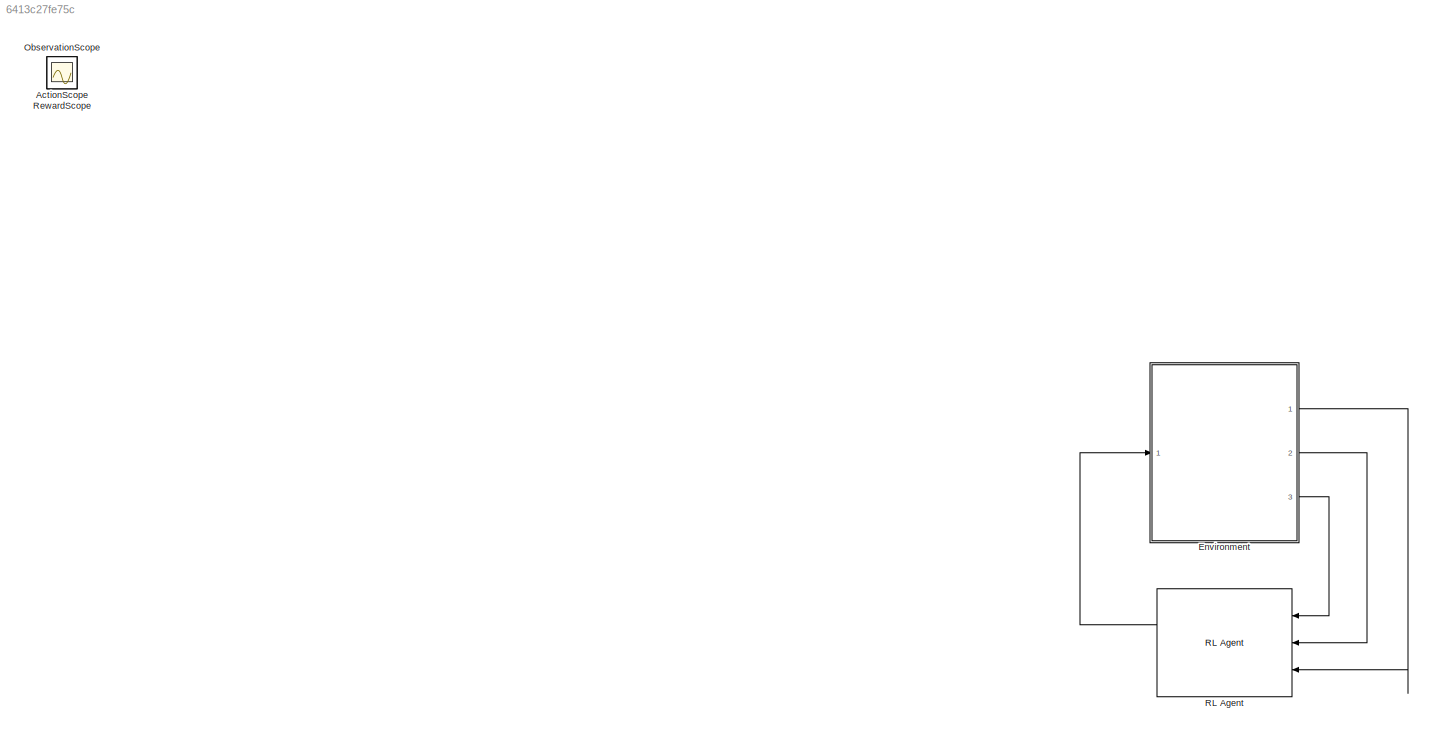
MODEL slx_6413c27fe75c
KIND model
CONFIG AbsTol = auto
CONFIG EnableMultiTasking = off
CONFIG FixedStep = auto
CONFIG MaxStep = auto
CONFIG MinStep = auto
CONFIG RelTol = 1e-3
CONFIG SampleTimeConstraint = Unconstrained
CONFIG Solver = VariableStepAuto
CONFIG SolverName = VariableStepAuto
CONFIG StartTime = 0.0
CONFIG StopTime = 25
WORKSPACE source: MATLAB code (in-file)
WORKSPACE mCart = 1
WORKSPACE mPend = 1
WORKSPACE g = 9.81
WORKSPACE L = 0.5
WORKSPACE theta0 = 180
WORKSPACE Kd = 10
BLOCK [Scope] ActionScope
  Floating = off
  IOType = viewer
  NumInputPorts = 1
  Ports = []
  ScopeSpecificationString = Simulink.scopes.TimeScopeBlockCfg('CurrentConfiguration', extmgr.ConfigurationSet(extmgr.Configuration('Core','General UI',true),extmgr.Configuration('Core','Source UI',true),extmgr.Configuration('Sources','WiredSimulink',true,'DataLoggingVariableName','ScopeData1'),extmgr.Configuration('Visuals','Time Domain',true,'SerializedDisplays',{struct('MinYLimReal','-16','MaxYLimReal','16','YLabelReal',''...<+1415ch>
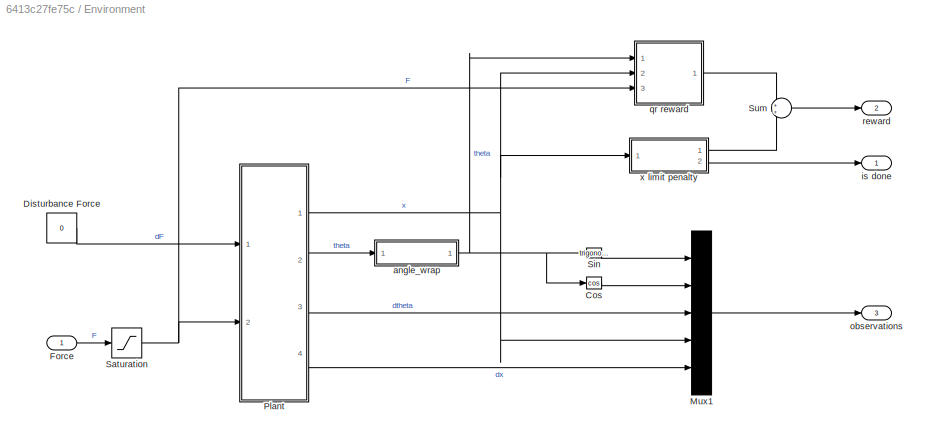
BLOCK [SubSystem] Environment
  Ports = [1, 3]
  RequestExecContextInheritance = off
BLOCK [Trigonometry] Environment/Cos
  Operator = cos
  Ports = [1, 1]
BLOCK [Constant] Environment/Disturbance Force
  Value = 0
BLOCK [Inport] Environment/Force
BLOCK [Mux] Environment/Mux1
  DisplayOption = bar
  Inputs = 5
  Ports = [5, 1]
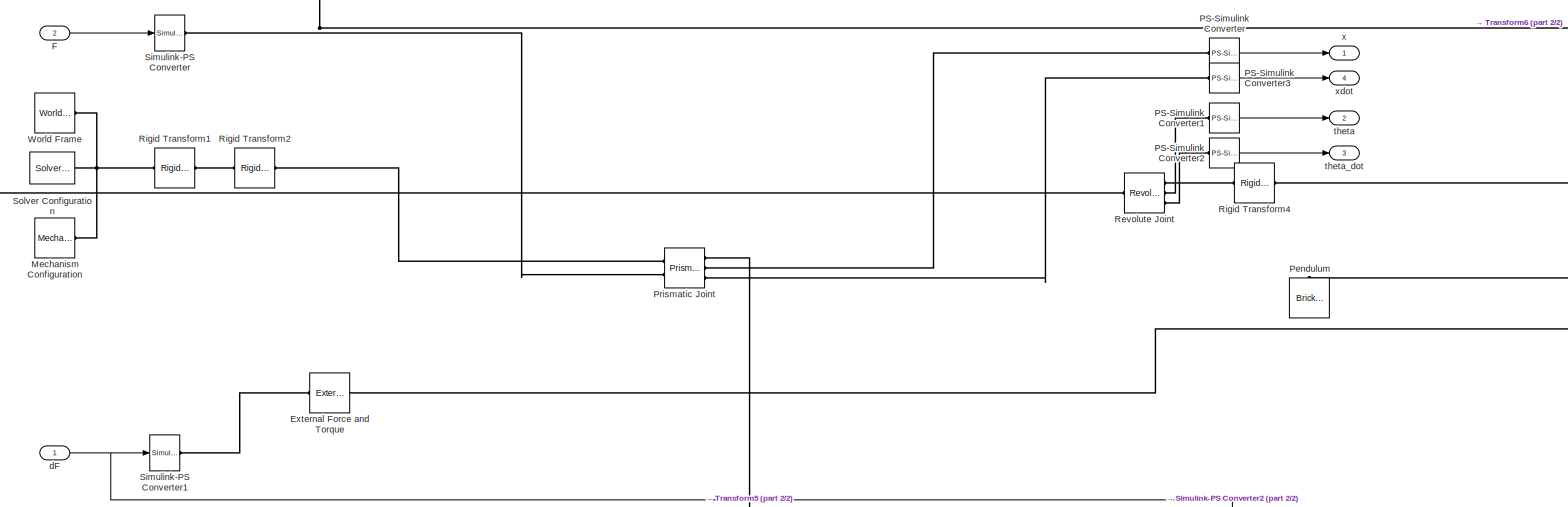
[diagram: Environment/Plant - part 1/2, central region]
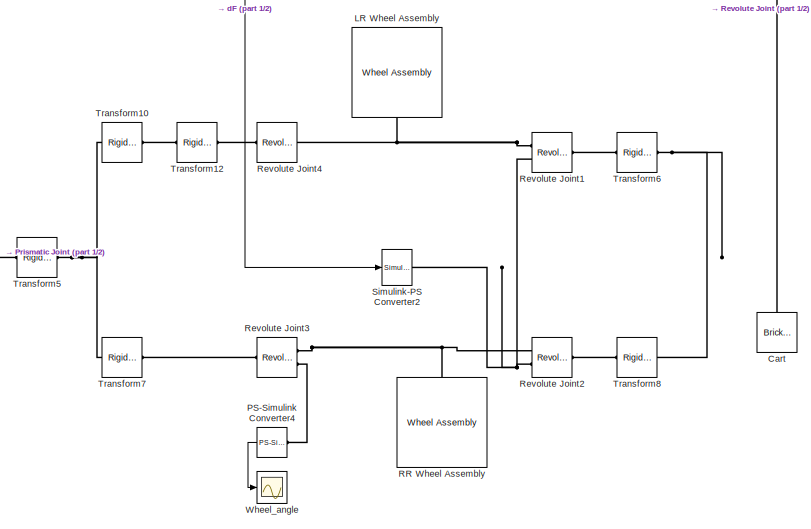
[diagram: Environment/Plant - part 2/2, bottom right region]
BLOCK [SubSystem] Environment/Plant
  Ports = [2, 4]
  RequestExecContextInheritance = off
BLOCK [Reference] Environment/Plant/Cart  REF=sm_lib/Body Elements/Brick Solid
  NameLocation = right
  Ports = [0, 0, 0, 0, 0, 0, 1]
  SourceBlock = sm_lib/Body Elements/Brick Solid
  SourceProductBaseCode = MS
  SourceType = Brick Solid
BLOCK [Reference] Environment/Plant/External Force and Torque  REF=sm_lib/Forces and
Torques/External Force
and Torque
  Ports = [0, 0, 0, 0, 0, 1, 1]
  SourceBlock = sm_lib/Forces and\nTorques/External Force\nand Torque
  SourceProductBaseCode = MS
  SourceType = External Force\nand Torque
BLOCK [Inport] Environment/Plant/F
  Port = 2
BLOCK [Reference] Environment/Plant/LR Wheel Assembly  REF=sm_vehicle_slalom_lib/Wheel Assembly  (lib defined in slx_7d64bd272453)
  NameLocation = left
  Ports = [0, 0, 0, 0, 0, 1]
  SourceBlock = sm_vehicle_slalom_lib/Wheel Assembly
  SourceProductBaseCode = MS
  SourceType = Wheel Assembly
BLOCK [Reference] Environment/Plant/Mechanism Configuration  REF=sm_lib/Utilities/Mechanism
Configuration
  Ports = [0, 0, 0, 0, 0, 0, 1]
  SourceBlock = sm_lib/Utilities/Mechanism\nConfiguration
  SourceProductBaseCode = MS
  SourceType = Mechanism\nConfiguration
BLOCK [Reference] Environment/Plant/PS-Simulink Converter  REF=nesl_utility/PS-Simulink
Converter
  Ports = [0, 1, 0, 0, 0, 1]
  SourceBlock = nesl_utility/PS-Simulink\nConverter
  SourceProductBaseCode = SS
  SourceType = PS-Simulink\nConverter
BLOCK [Reference] Environment/Plant/PS-Simulink Converter1  REF=nesl_utility/PS-Simulink
Converter
  Ports = [0, 1, 0, 0, 0, 1]
  SourceBlock = nesl_utility/PS-Simulink\nConverter
  SourceProductBaseCode = SS
  SourceType = PS-Simulink\nConverter
BLOCK [Reference] Environment/Plant/PS-Simulink Converter2  REF=nesl_utility/PS-Simulink
Converter
  Ports = [0, 1, 0, 0, 0, 1]
  SourceBlock = nesl_utility/PS-Simulink\nConverter
  SourceProductBaseCode = SS
  SourceType = PS-Simulink\nConverter
BLOCK [Reference] Environment/Plant/PS-Simulink Converter3  REF=nesl_utility/PS-Simulink
Converter
  Ports = [0, 1, 0, 0, 0, 1]
  SourceBlock = nesl_utility/PS-Simulink\nConverter
  SourceProductBaseCode = SS
  SourceType = PS-Simulink\nConverter
BLOCK [Reference] Environment/Plant/PS-Simulink Converter4  REF=nesl_utility/PS-Simulink
Converter
  NameLocation = top
  Ports = [0, 1, 0, 0, 0, 1]
  SourceBlock = nesl_utility/PS-Simulink\nConverter
  SourceProductBaseCode = SS
  SourceType = PS-Simulink\nConverter
BLOCK [Reference] Environment/Plant/Pendulum  REF=sm_lib/Body Elements/Brick Solid
  NameLocation = right
  Ports = [0, 0, 0, 0, 0, 0, 1]
  SourceBlock = sm_lib/Body Elements/Brick Solid
  SourceProductBaseCode = MS
  SourceType = Brick Solid
BLOCK [Reference] Environment/Plant/Prismatic Joint  REF=sm_lib/Joints/Prismatic
Joint
  Ports = [0, 0, 0, 0, 0, 2, 3]
  SourceBlock = sm_lib/Joints/Prismatic\nJoint
  SourceProductBaseCode = MS
  SourceType = Prismatic\nJoint
BLOCK [Reference] Environment/Plant/RR Wheel Assembly  REF=sm_vehicle_slalom_lib/Wheel Assembly  (lib defined in slx_7d64bd272453)
  NameLocation = left
  Ports = [0, 0, 0, 0, 0, 1]
  SourceBlock = sm_vehicle_slalom_lib/Wheel Assembly
  SourceProductBaseCode = MS
  SourceType = Wheel Assembly
BLOCK [Reference] Environment/Plant/Revolute Joint  REF=sm_lib/Joints/Revolute Joint
  Ports = [0, 0, 0, 0, 0, 1, 3]
  SourceBlock = sm_lib/Joints/Revolute Joint
  SourceProductBaseCode = MS
  SourceType = Revolute Joint
BLOCK [Reference] Environment/Plant/Revolute Joint1  REF=sm_lib/Joints/Revolute Joint
  Ports = [0, 0, 0, 0, 0, 2, 1]
  SourceBlock = sm_lib/Joints/Revolute Joint
  SourceProductBaseCode = MS
  SourceType = Revolute Joint
BLOCK [Reference] Environment/Plant/Revolute Joint2  REF=sm_lib/Joints/Revolute Joint
  Ports = [0, 0, 0, 0, 0, 2, 1]
  SourceBlock = sm_lib/Joints/Revolute Joint
  SourceProductBaseCode = MS
  SourceType = Revolute Joint
BLOCK [Reference] Environment/Plant/Revolute Joint3  REF=sm_lib/Joints/Revolute Joint
  Ports = [0, 0, 0, 0, 0, 1, 2]
  SourceBlock = sm_lib/Joints/Revolute Joint
  SourceProductBaseCode = MS
  SourceType = Revolute Joint
BLOCK [Reference] Environment/Plant/Revolute Joint4  REF=sm_lib/Joints/Revolute Joint
  Ports = [0, 0, 0, 0, 0, 1, 1]
  SourceBlock = sm_lib/Joints/Revolute Joint
  SourceProductBaseCode = MS
  SourceType = Revolute Joint
BLOCK [Reference] Environment/Plant/Rigid Transform1  REF=sm_lib/Frames and
Transforms/Rigid
Transform
  Ports = [0, 0, 0, 0, 0, 1, 1]
  SourceBlock = sm_lib/Frames and\nTransforms/Rigid\nTransform
  SourceProductBaseCode = MS
  SourceType = Rigid\nTransform
BLOCK [Reference] Environment/Plant/Rigid Transform2  REF=sm_lib/Frames and
Transforms/Rigid
Transform
  Ports = [0, 0, 0, 0, 0, 1, 1]
  SourceBlock = sm_lib/Frames and\nTransforms/Rigid\nTransform
  SourceProductBaseCode = MS
  SourceType = Rigid\nTransform
BLOCK [Reference] Environment/Plant/Rigid Transform4  REF=sm_lib/Frames and
Transforms/Rigid
Transform
  Ports = [0, 0, 0, 0, 0, 1, 1]
  SourceBlock = sm_lib/Frames and\nTransforms/Rigid\nTransform
  SourceProductBaseCode = MS
  SourceType = Rigid\nTransform
BLOCK [Reference] Environment/Plant/Simulink-PS Converter  REF=nesl_utility/Simulink-PS
Converter
  Ports = [1, 0, 0, 0, 0, 0, 1]
  SourceBlock = nesl_utility/Simulink-PS\nConverter
  SourceProductBaseCode = SS
  SourceType = Simulink-PS\nConverter
BLOCK [Reference] Environment/Plant/Simulink-PS Converter1  REF=nesl_utility/Simulink-PS
Converter
  Ports = [1, 0, 0, 0, 0, 0, 1]
  SourceBlock = nesl_utility/Simulink-PS\nConverter
  SourceProductBaseCode = SS
  SourceType = Simulink-PS\nConverter
BLOCK [Reference] Environment/Plant/Simulink-PS Converter2  REF=nesl_utility/Simulink-PS
Converter
  Ports = [1, 0, 0, 0, 0, 0, 1]
  SourceBlock = nesl_utility/Simulink-PS\nConverter
  SourceProductBaseCode = SS
  SourceType = Simulink-PS\nConverter
BLOCK [Reference] Environment/Plant/Solver Configuration  REF=nesl_utility/Solver
Configuration
  Ports = [0, 0, 0, 0, 0, 0, 1]
  SourceBlock = nesl_utility/Solver\nConfiguration
  SourceProductBaseCode = SS
  SourceType = Solver\nConfiguration
BLOCK [Reference] Environment/Plant/Transform10  REF=sm_lib/Frames and
Transforms/Rigid
Transform
  Ports = [0, 0, 0, 0, 0, 1, 1]
  SourceBlock = sm_lib/Frames and\nTransforms/Rigid\nTransform
  SourceProductBaseCode = MS
  SourceType = Rigid\nTransform
BLOCK [Reference] Environment/Plant/Transform12  REF=sm_lib/Frames and
Transforms/Rigid
Transform
  Ports = [0, 0, 0, 0, 0, 1, 1]
  SourceBlock = sm_lib/Frames and\nTransforms/Rigid\nTransform
  SourceProductBaseCode = MS
  SourceType = Rigid\nTransform
BLOCK [Reference] Environment/Plant/Transform5  REF=sm_lib/Frames and
Transforms/Rigid
Transform
  Ports = [0, 0, 0, 0, 0, 1, 1]
  SourceBlock = sm_lib/Frames and\nTransforms/Rigid\nTransform
  SourceProductBaseCode = MS
  SourceType = Rigid\nTransform
BLOCK [Reference] Environment/Plant/Transform6  REF=sm_lib/Frames and
Transforms/Rigid
Transform
  Ports = [0, 0, 0, 0, 0, 1, 1]
  SourceBlock = sm_lib/Frames and\nTransforms/Rigid\nTransform
  SourceProductBaseCode = MS
  SourceType = Rigid\nTransform
BLOCK [Reference] Environment/Plant/Transform7  REF=sm_lib/Frames and
Transforms/Rigid
Transform
  Ports = [0, 0, 0, 0, 0, 1, 1]
  SourceBlock = sm_lib/Frames and\nTransforms/Rigid\nTransform
  SourceProductBaseCode = MS
  SourceType = Rigid\nTransform
BLOCK [Reference] Environment/Plant/Transform8  REF=sm_lib/Frames and
Transforms/Rigid
Transform
  Ports = [0, 0, 0, 0, 0, 1, 1]
  SourceBlock = sm_lib/Frames and\nTransforms/Rigid\nTransform
  SourceProductBaseCode = MS
  SourceType = Rigid\nTransform
BLOCK [Scope] Environment/Plant/Wheel_angle
  Floating = off
  NumInputPorts = 1
  Ports = [1]
  ScopeSpecificationString = Simulink.scopes.TimeScopeBlockCfg('CurrentConfiguration', extmgr.ConfigurationSet(extmgr.Configuration('Core','General UI',true),extmgr.Configuration('Core','Source UI',true),extmgr.Configuration('Sources','WiredSimulink',true,'DataLoggingVariableName','ScopeData2','DataLoggingSaveFormat','StructureWithTime','DataLoggingDecimation','1','DataLoggingDecimateData',true),extmgr.Configuration('Visuals'...<+1603ch>
BLOCK [Reference] Environment/Plant/World Frame  REF=sm_lib/Frames and
Transforms/World Frame
  Ports = [0, 0, 0, 0, 0, 0, 1]
  SourceBlock = sm_lib/Frames and\nTransforms/World Frame
  SourceProductBaseCode = MS
  SourceType = World Frame
BLOCK [Inport] Environment/Plant/dF
BLOCK [Outport] Environment/Plant/theta
  Port = 2
  VectorParamsAs1DForOutWhenUnconnected = off
BLOCK [Outport] Environment/Plant/theta_dot
  Port = 3
  VectorParamsAs1DForOutWhenUnconnected = off
BLOCK [Outport] Environment/Plant/x
  VectorParamsAs1DForOutWhenUnconnected = off
BLOCK [Outport] Environment/Plant/xdot
  Port = 4
  VectorParamsAs1DForOutWhenUnconnected = off
BLOCK [Saturate] Environment/Saturation
  LowerLimit = -15
  UpperLimit = 15
BLOCK [Trigonometry] Environment/Sin
  Ports = [1, 1]
BLOCK [Sum] Environment/Sum
  Ports = [2, 1]
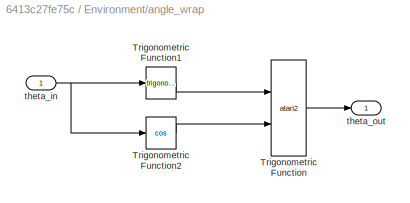
BLOCK [SubSystem] Environment/angle_wrap
  Ports = [1, 1]
  RequestExecContextInheritance = off
BLOCK [Trigonometry] Environment/angle_wrap/Trigonometric Function
  Operator = atan2
  Ports = [2, 1]
BLOCK [Trigonometry] Environment/angle_wrap/Trigonometric Function1
  Ports = [1, 1]
BLOCK [Trigonometry] Environment/angle_wrap/Trigonometric Function2
  Operator = cos
  Ports = [1, 1]
BLOCK [Inport] Environment/angle_wrap/theta_in
BLOCK [Outport] Environment/angle_wrap/theta_out
  VectorParamsAs1DForOutWhenUnconnected = off
BLOCK [Outport] Environment/is done
  VectorParamsAs1DForOutWhenUnconnected = off
BLOCK [Outport] Environment/observations
  Port = 3
  VectorParamsAs1DForOutWhenUnconnected = off
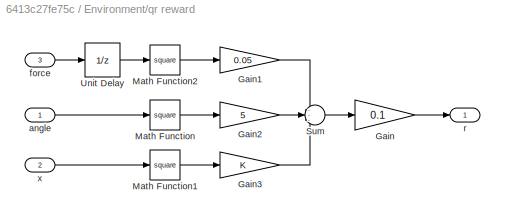
BLOCK [SubSystem] Environment/qr reward
  Ports = [3, 1]
  RequestExecContextInheritance = off
BLOCK [Gain] Environment/qr reward/Gain
  Gain = 0.1
BLOCK [Gain] Environment/qr reward/Gain1
  Gain = 0.05
BLOCK [Gain] Environment/qr reward/Gain2
  Gain = 5
BLOCK [Gain] Environment/qr reward/Gain3
BLOCK [Math] Environment/qr reward/Math Function
  Operator = square
  Ports = [1, 1]
  SignedPower = on
BLOCK [Math] Environment/qr reward/Math Function1
  Operator = square
  Ports = [1, 1]
  SignedPower = on
BLOCK [Math] Environment/qr reward/Math Function2
  Operator = square
  Ports = [1, 1]
  SignedPower = on
BLOCK [Sum] Environment/qr reward/Sum
  Inputs = ---
  Ports = [3, 1]
BLOCK [UnitDelay] Environment/qr reward/Unit Delay
  HasFrameUpgradeWarning = on
  SampleTime = Ts
BLOCK [Inport] Environment/qr reward/angle
BLOCK [Inport] Environment/qr reward/force
  Port = 3
BLOCK [Outport] Environment/qr reward/r
  VectorParamsAs1DForOutWhenUnconnected = off
BLOCK [Inport] Environment/qr reward/x
  Port = 2
BLOCK [Outport] Environment/reward
  Port = 2
  VectorParamsAs1DForOutWhenUnconnected = off
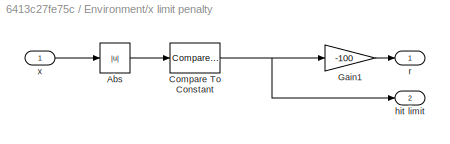
BLOCK [SubSystem] Environment/x limit penalty
  Ports = [1, 2]
  RequestExecContextInheritance = off
BLOCK [Abs] Environment/x limit penalty/Abs
  SaturateOnIntegerOverflow = off
BLOCK [Reference] Environment/x limit penalty/Compare To Constant  REF=simulink/Logic and Bit
Operations/Compare
To Constant
  Ports = [1, 1]
  SourceBlock = simulink/Logic and Bit\nOperations/Compare\nTo Constant
  SourceProductBaseCode = SL
  SourceType = Compare To Constant
BLOCK [Gain] Environment/x limit penalty/Gain1
  Gain = -100
BLOCK [Outport] Environment/x limit penalty/hit limit
  Port = 2
  VectorParamsAs1DForOutWhenUnconnected = off
BLOCK [Outport] Environment/x limit penalty/r
  VectorParamsAs1DForOutWhenUnconnected = off
BLOCK [Inport] Environment/x limit penalty/x
BLOCK [Scope] ObservationScope
  Floating = off
  IOType = viewer
  NumInputPorts = 1
  Ports = []
  ScopeSpecificationString = Simulink.scopes.TimeScopeBlockCfg('CurrentConfiguration', extmgr.ConfigurationSet(extmgr.Configuration('Core','General UI',true),extmgr.Configuration('Core','Source UI',true),extmgr.Configuration('Sources','WiredSimulink',true),extmgr.Configuration('Visuals','Time Domain',true,'SerializedDisplays',{struct('MinYLimReal','-0.2486','MaxYLimReal','0.02762','YLabelReal','','MinYLimMag','0.00000','MaxYL...<+3376ch>
BLOCK [Reference] RL Agent  REF=rllib/RL Agent
  Commented = on
  Ports = [3, 2]
  SourceBlock = rllib/RL Agent
  SourceProductName = The database <userpath>\AppData\Roaming\MathWorks\MATLAB\R2018b\slblocks_master.db is locked, or a table in the database is locked. (database is locked)
  SourceType = RL Agent
BLOCK [Scope] RewardScope
  Floating = off
  IOType = viewer
  NumInputPorts = 1
  Ports = []
  ScopeSpecificationString = Simulink.scopes.TimeScopeBlockCfg('CurrentConfiguration', extmgr.ConfigurationSet(extmgr.Configuration('Core','General UI',true),extmgr.Configuration('Core','Source UI',true),extmgr.Configuration('Sources','WiredSimulink',true,'DataLoggingVariableName','ScopeData2'),extmgr.Configuration('Visuals','Time Domain',true,'SerializedDisplays',{struct('MinYLimReal','-0.70946','MaxYLimReal','-0.42421','YLa...<+1394ch>
LINE Environment/Cos:1 -> Environment/Mux1:2
LINE Environment/Disturbance Force:1 -> Environment/Plant:1
LINE Environment/Force:1 -> Environment/Saturation:1
LINE Environment/Mux1:1 -> Environment/observations:1
LINE Environment/Plant/F:1 -> Environment/Plant/Simulink-PS Converter:1
LINE Environment/Plant/PS-Simulink Converter1:1 -> Environment/Plant/theta:1
LINE Environment/Plant/PS-Simulink Converter2:1 -> Environment/Plant/theta_dot:1
LINE Environment/Plant/PS-Simulink Converter3:1 -> Environment/Plant/xdot:1
LINE Environment/Plant/PS-Simulink Converter4:1 -> Environment/Plant/Wheel_angle:1
LINE Environment/Plant/PS-Simulink Converter:1 -> Environment/Plant/x:1
NET Environment/Plant/dF:1 -> Environment/Plant/Simulink-PS Converter1:1, Environment/Plant/Simulink-PS Converter2:1
NET Environment/Plant:1 -> Environment/Mux1:4, Environment/qr reward:2, Environment/x limit penalty:1
LINE Environment/Plant:2 -> Environment/angle_wrap:1
LINE Environment/Plant:3 -> Environment/Mux1:3
LINE Environment/Plant:4 -> Environment/Mux1:5
NET Environment/Saturation:1 -> Environment/Plant:2, Environment/qr reward:3
LINE Environment/Sin:1 -> Environment/Mux1:1
LINE Environment/Sum:1 -> Environment/reward:1
LINE Environment/angle_wrap/Trigonometric Function1:1 -> Environment/angle_wrap/Trigonometric Function:1
LINE Environment/angle_wrap/Trigonometric Function2:1 -> Environment/angle_wrap/Trigonometric Function:2
LINE Environment/angle_wrap/Trigonometric Function:1 -> Environment/angle_wrap/theta_out:1
NET Environment/angle_wrap/theta_in:1 -> Environment/angle_wrap/Trigonometric Function1:1, Environment/angle_wrap/Trigonometric Function2:1
NET Environment/angle_wrap:1 -> Environment/Cos:1, Environment/Sin:1, Environment/qr reward:1
LINE Environment/qr reward/Gain1:1 -> Environment/qr reward/Sum:1
LINE Environment/qr reward/Gain2:1 -> Environment/qr reward/Sum:2
LINE Environment/qr reward/Gain3:1 -> Environment/qr reward/Sum:3
LINE Environment/qr reward/Gain:1 -> Environment/qr reward/r:1
LINE Environment/qr reward/Math Function1:1 -> Environment/qr reward/Gain3:1
LINE Environment/qr reward/Math Function2:1 -> Environment/qr reward/Gain1:1
LINE Environment/qr reward/Math Function:1 -> Environment/qr reward/Gain2:1
LINE Environment/qr reward/Sum:1 -> Environment/qr reward/Gain:1
LINE Environment/qr reward/Unit Delay:1 -> Environment/qr reward/Math Function2:1
LINE Environment/qr reward/angle:1 -> Environment/qr reward/Math Function:1
LINE Environment/qr reward/force:1 -> Environment/qr reward/Unit Delay:1
LINE Environment/qr reward/x:1 -> Environment/qr reward/Math Function1:1
LINE Environment/qr reward:1 -> Environment/Sum:1
LINE Environment/x limit penalty/Abs:1 -> Environment/x limit penalty/Compare To Constant:1
NET Environment/x limit penalty/Compare To Constant:1 -> Environment/x limit penalty/Gain1:1, Environment/x limit penalty/hit limit:1
LINE Environment/x limit penalty/Gain1:1 -> Environment/x limit penalty/r:1
LINE Environment/x limit penalty/x:1 -> Environment/x limit penalty/Abs:1
LINE Environment/x limit penalty:1 -> Environment/Sum:2
LINE Environment/x limit penalty:2 -> Environment/is done:1
LINE Environment:1 -> RL Agent:3
LINE Environment:2 -> RL Agent:2
LINE Environment:3 -> RL Agent:1
LINE RL Agent:1 -> Environment:1
PNET net1: Environment/Plant/Cart:RConn1 -- Environment/Plant/Revolute Joint:LConn1 -- Environment/Plant/Transform6:RConn1 -- Environment/Plant/Transform8:LConn1
PLINE Environment/Plant/External Force and Torque:LConn1 -- Environment/Plant/Simulink-PS Converter1:RConn1
PNET net2: Environment/Plant/External Force and Torque:RConn1 -- Environment/Plant/Pendulum:RConn1 -- Environment/Plant/Rigid Transform4:RConn1
PNET net3: Environment/Plant/LR Wheel Assembly:LConn1 -- Environment/Plant/Revolute Joint1:LConn1 -- Environment/Plant/Revolute Joint4:RConn1
PNET net4: Environment/Plant/Mechanism Configuration:RConn1 -- Environment/Plant/Rigid Transform1:LConn1 -- Environment/Plant/Solver Configuration:RConn1 -- Environment/Plant/World Frame:RConn1
PLINE Environment/Plant/PS-Simulink Converter1:LConn1 -- Environment/Plant/Revolute Joint:RConn2
PLINE Environment/Plant/PS-Simulink Converter2:LConn1 -- Environment/Plant/Revolute Joint:RConn3
PLINE Environment/Plant/PS-Simulink Converter3:LConn1 -- Environment/Plant/Prismatic Joint:RConn3
PLINE Environment/Plant/PS-Simulink Converter4:LConn1 -- Environment/Plant/Revolute Joint3:RConn2
PLINE Environment/Plant/PS-Simulink Converter:LConn1 -- Environment/Plant/Prismatic Joint:RConn2
PLINE Environment/Plant/Prismatic Joint:LConn1 -- Environment/Plant/Rigid Transform2:RConn1
PLINE Environment/Plant/Prismatic Joint:LConn2 -- Environment/Plant/Simulink-PS Converter:RConn1
PLINE Environment/Plant/Prismatic Joint:RConn1 -- Environment/Plant/Transform5:LConn1
PNET net5: Environment/Plant/RR Wheel Assembly:LConn1 -- Environment/Plant/Revolute Joint2:LConn1 -- Environment/Plant/Revolute Joint3:RConn1
PNET net6: Environment/Plant/Revolute Joint1:LConn2 -- Environment/Plant/Revolute Joint2:LConn2 -- Environment/Plant/Simulink-PS Converter2:RConn1
PLINE Environment/Plant/Revolute Joint1:RConn1 -- Environment/Plant/Transform6:LConn1
PLINE Environment/Plant/Revolute Joint2:RConn1 -- Environment/Plant/Transform8:RConn1
PLINE Environment/Plant/Revolute Joint3:LConn1 -- Environment/Plant/Transform7:RConn1
PLINE Environment/Plant/Revolute Joint4:LConn1 -- Environment/Plant/Transform12:RConn1
PLINE Environment/Plant/Revolute Joint:RConn1 -- Environment/Plant/Rigid Transform4:LConn1
PLINE Environment/Plant/Rigid Transform1:RConn1 -- Environment/Plant/Rigid Transform2:LConn1
PNET net7: Environment/Plant/Transform10:LConn1 -- Environment/Plant/Transform5:RConn1 -- Environment/Plant/Transform7:LConn1
PLINE Environment/Plant/Transform10:RConn1 -- Environment/Plant/Transform12:LConn1
note: NET lines group one-source signal fan-out (src -> all destinations, sorted); 1:1 wires keep LINE; PNET lines group multi-terminal physical nets as a canonical sorted terminal list (undirected conserving connections); 2-terminal nets keep the pairwise PLINE form
